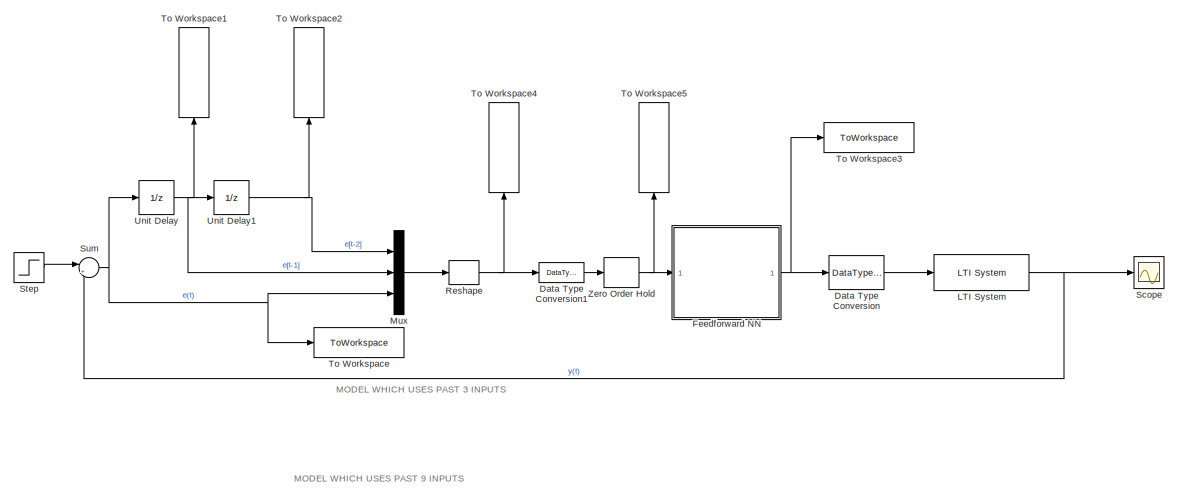
[diagram: root canvas - part 1/3, top center region]
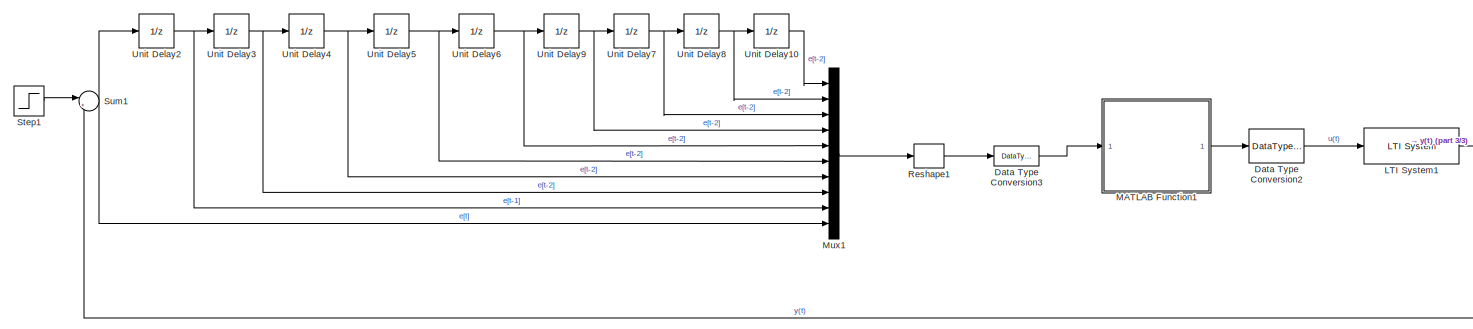
[diagram: root canvas - part 2/3, full width, bottom band]
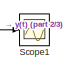
[diagram: root canvas - part 3/3, bottom right region]
MODEL slx_86c832cd3a92
KIND model
CONFIG AbsTol = auto
CONFIG EnableMultiTasking = off
CONFIG FixedStep = auto
CONFIG MaxStep = auto
CONFIG MinStep = auto
CONFIG RelTol = 1e-3
CONFIG SampleTimeConstraint = Unconstrained
CONFIG SolverName = VariableStepAuto
CONFIG StartTime = 0.0
CONFIG StopTime = stopTime
BLOCK [DataTypeConversion] Data Type Conversion
  OutDataTypeStr = double
  RndMeth = Floor
  SaturateOnIntegerOverflow = off
BLOCK [DataTypeConversion] Data Type Conversion1
  OutDataTypeStr = double
  RndMeth = Floor
  SaturateOnIntegerOverflow = off
BLOCK [DataTypeConversion] Data Type Conversion2
  Commented = on
  OutDataTypeStr = double
  RndMeth = Floor
  SaturateOnIntegerOverflow = off
BLOCK [DataTypeConversion] Data Type Conversion3
  Commented = on
  OutDataTypeStr = double
  RndMeth = Floor
  SaturateOnIntegerOverflow = off
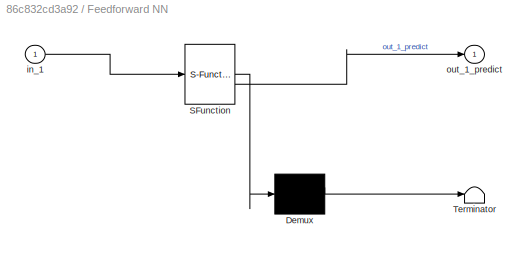
BLOCK [SubSystem] Feedforward NN
  ErrorFcn = Stateflow.Translate.translate
  PermitHierarchicalResolution = ExplicitOnly
  SFBlockType = MATLAB Function
  TreatAsAtomicUnit = on
BLOCK [Demux] Feedforward NN/ Demux 
  Outputs = 1
BLOCK [S-Function] Feedforward NN/ SFunction 
  EnableBusSupport = on
  FunctionName = sf_sfun
  PortCounts = [1 2]
  SFcnIsStateOwnerBlock = off
  SFunctionDeploymentMode = off
  Tag = Stateflow S-Function 3
BLOCK [Terminator] Feedforward NN/ Terminator 
BLOCK [Inport] Feedforward NN/in_1
BLOCK [Outport] Feedforward NN/out_1_predict
BLOCK [Reference] LTI System  REF=cstblocks/LTI System
  SourceBlock = cstblocks/LTI System
  SourceType = LTI Block
BLOCK [Reference] LTI System1  REF=cstblocks/LTI System
  Commented = on
  SourceBlock = cstblocks/LTI System
  SourceType = LTI Block
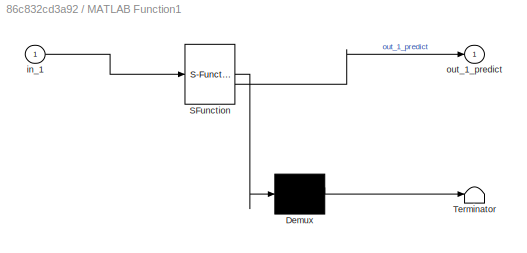
BLOCK [SubSystem] MATLAB Function1
  Commented = on
  ErrorFcn = Stateflow.Translate.translate
  PermitHierarchicalResolution = ExplicitOnly
  SFBlockType = MATLAB Function
  TreatAsAtomicUnit = on
BLOCK [Demux] MATLAB Function1/ Demux 
  Outputs = 1
BLOCK [S-Function] MATLAB Function1/ SFunction 
  EnableBusSupport = on
  FunctionName = sf_sfun
  PortCounts = [1 2]
  SFcnIsStateOwnerBlock = off
  SFunctionDeploymentMode = off
  Tag = Stateflow S-Function 1
BLOCK [Terminator] MATLAB Function1/ Terminator 
BLOCK [Inport] MATLAB Function1/in_1
BLOCK [Outport] MATLAB Function1/out_1_predict
BLOCK [Mux] Mux
  DisplayOption = bar
  Inputs = 3
BLOCK [Mux] Mux1
  Commented = on
  DisplayOption = bar
  Inputs = 10
BLOCK [Reshape] Reshape
  OutputDimensionality = Row vector (2-D)
BLOCK [Reshape] Reshape1
  Commented = on
  OutputDimensionality = Row vector (2-D)
BLOCK [Scope] Scope
  Floating = off
  NumInputPorts = 1
  ScopeSpecificationString = Simulink.scopes.TimeScopeBlockCfg('CurrentConfiguration', extmgr.ConfigurationSet(extmgr.Configuration('Core','General UI',true),extmgr.Configuration('Core','Source UI',true),extmgr.Configuration('Sources','WiredSimulink',true),extmgr.Configuration('Visuals','Time Domain',true,'SerializedDisplays',{struct('MinYLimReal','-2875.16663','MaxYLimReal','319.46296','YLabelReal','','MinYLimMag','  0.00000...<+1417ch>
BLOCK [Scope] Scope1
  Commented = on
  Floating = off
  NumInputPorts = 1
  ScopeSpecificationString = Simulink.scopes.TimeScopeBlockCfg('CurrentConfiguration', extmgr.ConfigurationSet(extmgr.Configuration('Core','General UI',true),extmgr.Configuration('Core','Source UI',true),extmgr.Configuration('Sources','WiredSimulink',true,'DataLoggingVariableName','ScopeData1'),extmgr.Configuration('Visuals','Time Domain',true,'SerializedDisplays',{struct('MinYLimReal','-138404139465394.4375','MaxYLimReal','1...<+1507ch>
BLOCK [Step] Step
  SampleTime = 0
  Time = 0
BLOCK [Step] Step1
  Commented = on
  SampleTime = 0
  Time = 0
BLOCK [Sum] Sum
  Inputs = |+-
BLOCK [Sum] Sum1
  Commented = on
  Inputs = |+-
BLOCK [ToWorkspace] To Workspace
  FixptAsFi = on
  MaxDataPoints = inf
  SampleTime = sampleTime
  SaveFormat = Timeseries
  VariableName = x0
BLOCK [ToWorkspace] To Workspace1
  FixptAsFi = on
  MaxDataPoints = inf
  NameLocation = right
  SampleTime = sampleTime
  SaveFormat = Timeseries
  VariableName = x1
BLOCK [ToWorkspace] To Workspace2
  FixptAsFi = on
  MaxDataPoints = inf
  NameLocation = right
  SampleTime = sampleTime
  SaveFormat = Timeseries
  VariableName = x2
BLOCK [ToWorkspace] To Workspace3
  FixptAsFi = on
  MaxDataPoints = inf
  SampleTime = sampleTime
  SaveFormat = Timeseries
  VariableName = u
BLOCK [ToWorkspace] To Workspace4
  FixptAsFi = on
  MaxDataPoints = inf
  NameLocation = right
  SampleTime = sampleTime
  SaveFormat = Timeseries
  VariableName = X
BLOCK [ToWorkspace] To Workspace5
  FixptAsFi = on
  MaxDataPoints = inf
  NameLocation = right
  SampleTime = sampleTime
  SaveFormat = Timeseries
  VariableName = XNN
BLOCK [UnitDelay] Unit Delay
  HasFrameUpgradeWarning = on
  SampleTime = sampleTime
BLOCK [UnitDelay] Unit Delay1
  HasFrameUpgradeWarning = on
  SampleTime = sampleTime
BLOCK [UnitDelay] Unit Delay10
  Commented = on
  HasFrameUpgradeWarning = on
  SampleTime = sampleTime
BLOCK [UnitDelay] Unit Delay2
  Commented = on
  HasFrameUpgradeWarning = on
  SampleTime = sampleTime
BLOCK [UnitDelay] Unit Delay3
  Commented = on
  HasFrameUpgradeWarning = on
  SampleTime = sampleTime
BLOCK [UnitDelay] Unit Delay4
  Commented = on
  HasFrameUpgradeWarning = on
  SampleTime = sampleTime
BLOCK [UnitDelay] Unit Delay5
  Commented = on
  HasFrameUpgradeWarning = on
  SampleTime = sampleTime
BLOCK [UnitDelay] Unit Delay6
  Commented = on
  HasFrameUpgradeWarning = on
  SampleTime = sampleTime
BLOCK [UnitDelay] Unit Delay7
  Commented = on
  HasFrameUpgradeWarning = on
  SampleTime = sampleTime
BLOCK [UnitDelay] Unit Delay8
  Commented = on
  HasFrameUpgradeWarning = on
  SampleTime = sampleTime
BLOCK [UnitDelay] Unit Delay9
  Commented = on
  HasFrameUpgradeWarning = on
  SampleTime = sampleTime
BLOCK [ZeroOrderHold] Zero Order Hold
  SampleTime = sampleTime
ANNOTATION (root): MODEL WHICH USES PAST 9 INPUTS
ANNOTATION (root): MODEL WHICH USES PAST 3 INPUTS
LINE Data Type Conversion1:1 -> Zero Order Hold:1
LINE Data Type Conversion2:1 -> LTI System1:1
LINE Data Type Conversion3:1 -> MATLAB Function1:1
LINE Data Type Conversion:1 -> LTI System:1
NET Feedforward NN:1 -> Data Type Conversion:1, To Workspace3:1
NET LTI System1:1 -> Scope1:1, Sum1:2
NET LTI System:1 -> Scope:1, Sum:2
LINE MATLAB Function1:1 -> Data Type Conversion2:1
LINE Mux1:1 -> Reshape1:1
LINE Mux:1 -> Reshape:1
LINE Reshape1:1 -> Data Type Conversion3:1
NET Reshape:1 -> Data Type Conversion1:1, To Workspace4:1
LINE Step1:1 -> Sum1:1
LINE Step:1 -> Sum:1
NET Sum1:1 -> Mux1:10, Unit Delay2:1
NET Sum:1 -> Mux:3, To Workspace:1, Unit Delay:1
LINE Unit Delay10:1 -> Mux1:1
NET Unit Delay1:1 -> Mux:1, To Workspace2:1
NET Unit Delay2:1 -> Mux1:9, Unit Delay3:1
NET Unit Delay3:1 -> Mux1:8, Unit Delay4:1
NET Unit Delay4:1 -> Mux1:7, Unit Delay5:1
NET Unit Delay5:1 -> Mux1:6, Unit Delay6:1
NET Unit Delay6:1 -> Mux1:5, Unit Delay9:1
NET Unit Delay7:1 -> Mux1:3, Unit Delay8:1
NET Unit Delay8:1 -> Mux1:2, Unit Delay10:1
NET Unit Delay9:1 -> Mux1:4, Unit Delay7:1
NET Unit Delay:1 -> Mux:2, To Workspace1:1, Unit Delay1:1
NET Zero Order Hold:1 -> Feedforward NN:1, To Workspace5:1
note: NET lines group one-source signal fan-out (src -> all destinations, sorted); 1:1 wires keep LINE
CHART Feedforward NN states=1 transitions=1
  STATE_LABEL 'eML_blk_kernel()'
  STATE_LABEL 'SCRIPT:\nfunction out_1_predict  = deepNetwork( in_1 )\nisSim = coder.target(\'sfun\');\nsimSupported = false;\nuseExtrinsic = isSim && ~simSupported;\n[out_1_predict] = deep.blocks.internal.deepNetwork({in_1}, {size(in_1)}, {class(in_1)}, coder.const("feedforwardPastInputs/Predict1"), \'<userpath>\\OneDrive - Nexus365<path>\', useExtrinsic, false, 128, t...<+19ch>'
CHART MATLAB Function1 states=1 transitions=1
  STATE_LABEL 'eML_blk_kernel()'
  STATE_LABEL 'SCRIPT:\nfunction out_1_predict  = deepNetwork( in_1 )\nisSim = coder.target(\'sfun\');\nsimSupported = false;\nuseExtrinsic = isSim && ~simSupported;\n[out_1_predict] = deep.blocks.internal.deepNetwork({in_1}, {size(in_1)}, {class(in_1)}, coder.const("feedforwardPastInputs/Predict1"), \'<userpath>\\OneDrive - Nexus365<path>\', useExtrinsic, false, 128, true, {...<+13ch>'
CHART  states=0 transitions=0
CHART  states=0 transitions=0
note: 2 file-system paths scrubbed to <path> (not preserved elsewhere — flat text is the only slx artifact)
